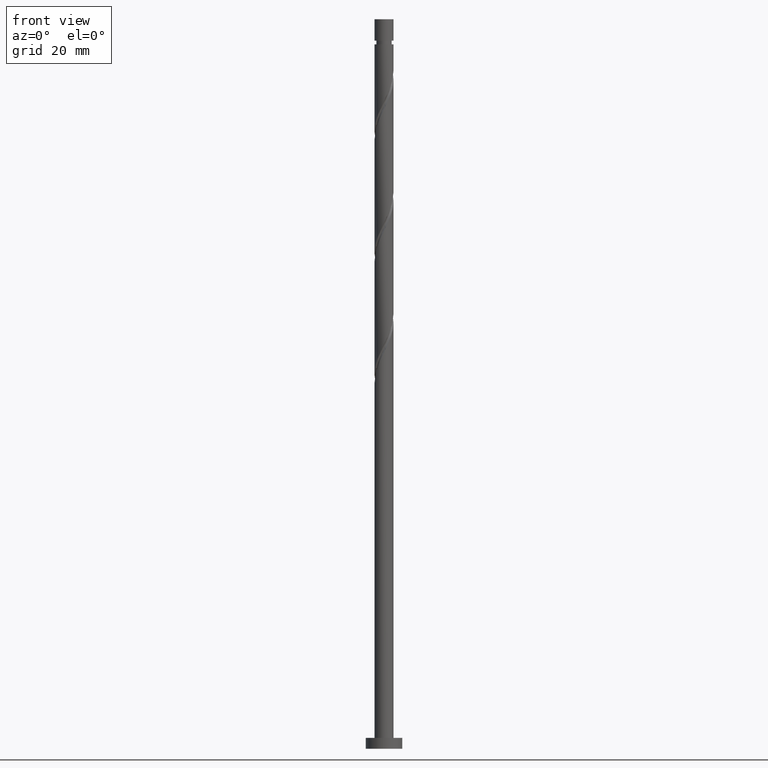
[diagram: clean part render]
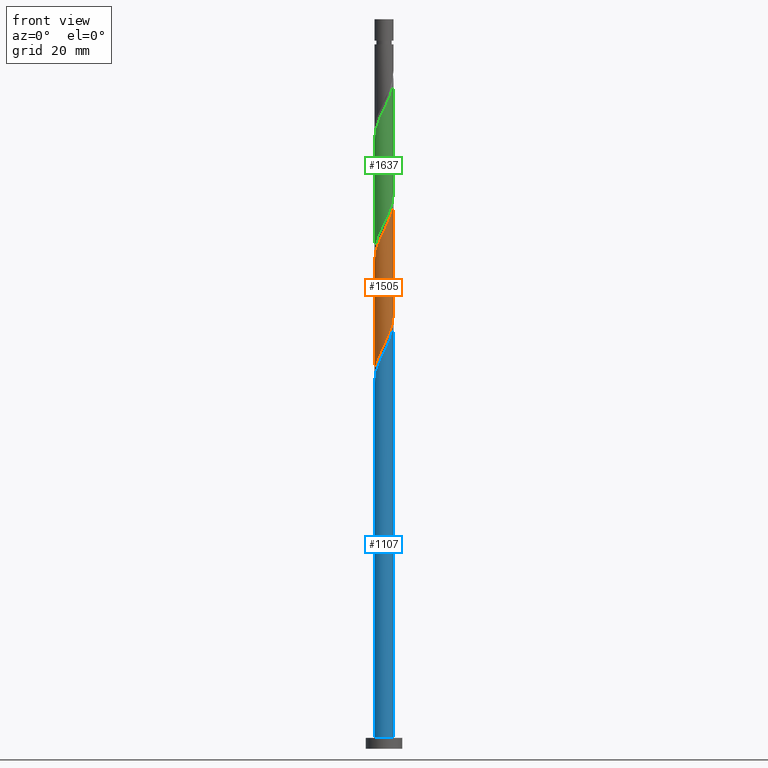
[diagram: same view with three faces highlighted in distinct colors, each labeled with its STEP entity id]
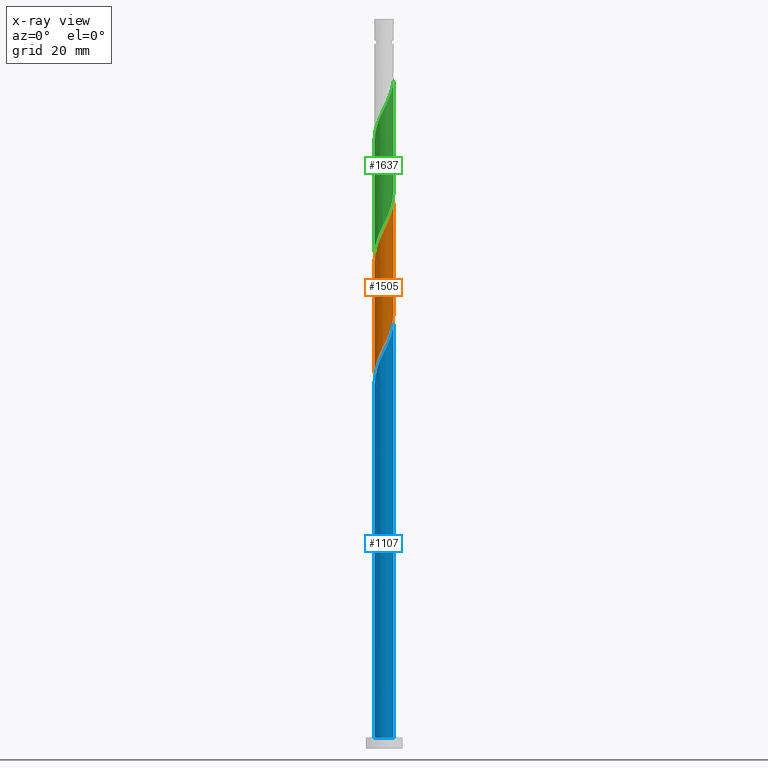
[diagram: x-ray of the same camera — body ghosted, the three highlighted faces saturated]
A machine part, front view with three faces highlighted in distinct colors.
The next image is the same camera in x-ray (body ghosted, the three faces saturated) — at least one of them is partly hidden behind the body in this view.
Their STEP definitions:

[orange] entity #1505 — the highlighted cylindrical surface (edge-blend (fillet) strip) has radius 2.6 mm, axis along (-0, -0, -1).
#12 = CARTESIAN_POINT ( 'NONE',  ( -0.8528440311481289005, -2.479883857795150970, 109.0557578972764219 ) ) ;
#59 = CARTESIAN_POINT ( 'NONE',  ( -2.600000000000000089, 0.000000000000000000, 200.0000000000000000 ) ) ;
#62 = EDGE_LOOP ( 'NONE', ( #938, #1053, #1549, #1127 ) ) ;
#133 = CARTESIAN_POINT ( 'NONE',  ( 2.574064434859625550, -0.5013573324573725731, 149.3335356750541507 ) ) ;
#135 = CARTESIAN_POINT ( 'NONE',  ( 2.174651586678561177, -1.465625247522153396, 116.0002023417208790 ) ) ;
#158 = VERTEX_POINT ( 'NONE', #1333 ) ;
#224 = EDGE_CURVE ( 'NONE', #158, #1468, #657, .T. ) ;
#265 = CARTESIAN_POINT ( 'NONE',  ( 2.600000000000003197, -0.07992907430996767926, 150.1901386651493056 ) ) ;
#267 = CARTESIAN_POINT ( 'NONE',  ( -2.356594490121320717, -1.150490894682694609, 104.8890912306097505 ) ) ;
#271 = CARTESIAN_POINT ( 'NONE',  ( -2.479883857795156743, -0.8528440311481284564, 135.4446467861652650 ) ) ;
#275 = CARTESIAN_POINT ( 'NONE',  ( -2.600000000000000533, 3.454324206476229849E-15, 102.4804356635976177 ) ) ;
#291 = CARTESIAN_POINT ( 'NONE',  ( 2.600000000000003642, 6.504896232974682792E-16, 150.3533023531774404 ) ) ;
#293 = CARTESIAN_POINT ( 'NONE',  ( 1.721220403711493541, -1.978526525337782838, 114.6113134528319932 ) ) ;
#302 = CARTESIAN_POINT ( 'NONE',  ( -0.1819429034427596792, -2.616116142204848671, 110.4446467861653076 ) ) ;
#328 = DIRECTION ( 'NONE',  ( -0.000000000000000000, -0.000000000000000000, -1.000000000000000000 ) ) ;
#336 =( BOUNDED_CURVE ( )  B_SPLINE_CURVE ( 2, ( #1198, #1720, #523, #271, #840, #559, #533, #1630, #821, #1081, #1621, #1219, #1097, #983, #1499, #1596, #397, #1470, #1735, #813, #659, #1494, #1473, #133, #1617, #265, #291 ),
 .UNSPECIFIED., .F., .T. ) 
 B_SPLINE_CURVE_WITH_KNOTS ( ( 3, 2, 2, 2, 2, 2, 2, 2, 2, 2, 2, 2, 2, 3 ),
 ( 0.3045317669814464612, 0.3125000000000000000, 0.3229166666666666297, 0.3333333333333333703, 0.3437500000000000000, 0.3541666666666666297, 0.3645833333333333703, 0.3750000000000000000, 0.3854166666666666297, 0.3958333333333333703, 0.4062500000000000000, 0.4166666666666666297, 0.4270833333333333703, 0.4295317669814458506 ),
 .UNSPECIFIED. ) 
 CURVE ( )  GEOMETRIC_REPRESENTATION_ITEM ( )  RATIONAL_B_SPLINE_CURVE ( ( 0.9062941362546521606, 0.9031415850403566870, 0.9090909090909320422, 0.9013135103398504100, 0.9090909090909320422, 0.9013135103398504100, 0.9090909090909320422, 0.9013135103398504100, 0.9090909090909320422, 0.9013135103398504100, 0.9090909090909320422, 0.9013135103398504100, 0.9090909090909320422, 0.9013135103398504100, 0.9090909090909320422, 0.9013135103398504100, 0.9090909090909320422, 0.9013135103398504100, 0.9090909090909320422, 0.9013135103398504100, 0.9090909090909320422, 0.9013135103398504100, 0.9090909090909320422, 0.9013135103398504100, 0.9090909090909320422, 0.9072628343904260984, 0.9062941362546526047 ) ) 
 REPRESENTATION_ITEM ( '' )  );
#390 = VECTOR ( 'NONE', #1547, 1000.000000000000000 ) ;
#397 = CARTESIAN_POINT ( 'NONE',  ( 1.159234639335140704, -2.327267722236860514, 144.4724245639430933 ) ) ;
#420 = EDGE_CURVE ( 'NONE', #1315, #158, #1662, .T. ) ;
#422 = CARTESIAN_POINT ( 'NONE',  ( 1.947935995195027248, -1.722075886429968561, 115.3057578972764361 ) ) ;
#454 = CARTESIAN_POINT ( 'NONE',  ( -2.600000000000000533, 3.454324206476229849E-15, 102.4804356635976177 ) ) ;
#485 = EDGE_CURVE ( 'NONE', #800, #1468, #1526, .T. ) ;
#523 = CARTESIAN_POINT ( 'NONE',  ( -2.548000000000004039, -0.5173934672954438874, 134.7502023417209216 ) ) ;
#533 = CARTESIAN_POINT ( 'NONE',  ( -1.947935995195030801, -1.722075886429968783, 137.5279801194986646 ) ) ;
#547 = CARTESIAN_POINT ( 'NONE',  ( 2.600000000000000533, 3.087956487607539127E-15, 119.1471023302642891 ) ) ;
#559 = CARTESIAN_POINT ( 'NONE',  ( -2.174651586678564730, -1.465625247522152952, 136.8335356750542076 ) ) ;
#568 = DIRECTION ( 'NONE',  ( -1.000000000000000000, 0.000000000000000000, 0.000000000000000000 ) ) ;
#572 = CARTESIAN_POINT ( 'NONE',  ( 0.1597072145073043792, -2.595090288532234890, 111.1390912306097789 ) ) ;
#657 =( BOUNDED_CURVE ( )  B_SPLINE_CURVE ( 2, ( #547, #837, #1216, #1488, #1102, #135, #422, #293, #979, #846, #707, #1636, #572, #302, #1608, #12, #970, #1094, #960, #1371, #987, #267, #1340, #1479, #1619, #1246, #275 ),
 .UNSPECIFIED., .F., .T. ) 
 B_SPLINE_CURVE_WITH_KNOTS ( ( 3, 2, 2, 2, 2, 2, 2, 2, 2, 2, 2, 2, 2, 3 ),
 ( 0.8045317669814462391, 0.8125000000000000000, 0.8229166666666666297, 0.8333333333333333703, 0.8437500000000000000, 0.8541666666666666297, 0.8645833333333333703, 0.8750000000000000000, 0.8854166666666666297, 0.8958333333333333703, 0.9062500000000000000, 0.9166666666666666297, 0.9270833333333333703, 0.9295317669814463502 ),
 .UNSPECIFIED. ) 
 CURVE ( )  GEOMETRIC_REPRESENTATION_ITEM ( )  RATIONAL_B_SPLINE_CURVE ( ( 0.9062941362546470536, 0.9031415850403513579, 0.9090909090909268242, 0.9013135103398453030, 0.9090909090909268242, 0.9013135103398453030, 0.9090909090909268242, 0.9013135103398453030, 0.9090909090909268242, 0.9013135103398453030, 0.9090909090909268242, 0.9013135103398453030, 0.9090909090909268242, 0.9013135103398453030, 0.9090909090909268242, 0.9013135103398453030, 0.9090909090909268242, 0.9013135103398453030, 0.9090909090909268242, 0.9013135103398453030, 0.9090909090909268242, 0.9013135103398453030, 0.9090909090909268242, 0.9013135103398453030, 0.9090909090909268242, 0.9072628343904205472, 0.9062941362546470536 ) ) 
 REPRESENTATION_ITEM ( '' )  );
#659 = CARTESIAN_POINT ( 'NONE',  ( 2.167560507729553887, -1.435855649197098183, 147.2502023417208363 ) ) ;
#707 = CARTESIAN_POINT ( 'NONE',  ( 0.8259241135700319258, -2.465329462490472245, 112.5279801194986504 ) ) ;
#715 = CARTESIAN_POINT ( 'NONE',  ( 2.600000000000000089, 3.184081677783118191E-16, 200.0000000000000000 ) ) ;
#717 = DIRECTION ( 'NONE',  ( -0.000000000000000000, -0.000000000000000000, -1.000000000000000000 ) ) ;
#729 = CYLINDRICAL_SURFACE ( 'NONE', #1084, 2.600000000000000089 ) ;
#800 = VERTEX_POINT ( 'NONE', #1139 ) ;
#813 = CARTESIAN_POINT ( 'NONE',  ( 1.978526525337784170, -1.721220403711497093, 146.5557578972763793 ) ) ;
#821 = CARTESIAN_POINT ( 'NONE',  ( -1.435855649197097073, -2.167560507729553887, 138.9168690083875788 ) ) ;
#837 = CARTESIAN_POINT ( 'NONE',  ( 2.600000000000000977, -0.2613098319673945458, 118.6136759610750033 ) ) ;
#840 = CARTESIAN_POINT ( 'NONE',  ( -2.327267722236859626, -1.159234639335141148, 136.1390912306098073 ) ) ;
#846 = CARTESIAN_POINT ( 'NONE',  ( 1.150490894682694609, -2.356594490121320717, 113.2224245639430791 ) ) ;
#938 = ORIENTED_EDGE ( 'NONE', *, *, #420, .F. ) ;
#960 = CARTESIAN_POINT ( 'NONE',  ( -1.722075886429968339, -1.947935995195027248, 106.9724245639430649 ) ) ;
#970 = CARTESIAN_POINT ( 'NONE',  ( -1.159234639335141148, -2.327267722236857406, 108.3613134528319790 ) ) ;
#979 = CARTESIAN_POINT ( 'NONE',  ( 1.435855649197093520, -2.167560507729552111, 113.9168690083875646 ) ) ;
#982 = CARTESIAN_POINT ( 'NONE',  ( 0.000000000000000000, 0.000000000000000000, 200.0000000000000000 ) ) ;
#983 = CARTESIAN_POINT ( 'NONE',  ( 0.1819429034427578473, -2.616116142204851336, 142.3890912306097505 ) ) ;
#987 = CARTESIAN_POINT ( 'NONE',  ( -2.167560507729551667, -1.435855649197094630, 105.5835356750541791 ) ) ;
#1053 = ORIENTED_EDGE ( 'NONE', *, *, #1256, .F. ) ;
#1081 = CARTESIAN_POINT ( 'NONE',  ( -1.150490894682697718, -2.356594490121323382, 139.6113134528319790 ) ) ;
#1084 = AXIS2_PLACEMENT_3D ( 'NONE', #982, #717, #568 ) ;
#1094 = CARTESIAN_POINT ( 'NONE',  ( -1.465625247522152286, -2.174651586678561177, 107.6668690083875362 ) ) ;
#1097 = CARTESIAN_POINT ( 'NONE',  ( -0.1597072145073067662, -2.595090288532238887, 141.6946467861653502 ) ) ;
#1102 = CARTESIAN_POINT ( 'NONE',  ( 2.327267722236856518, -1.159234639335142258, 116.6946467861653360 ) ) ;
#1127 = ORIENTED_EDGE ( 'NONE', *, *, #224, .F. ) ;
#1139 = CARTESIAN_POINT ( 'NONE',  ( -2.600000000000003642, -2.302882804317473550E-15, 133.6866356865107832 ) ) ;
#1158 = CARTESIAN_POINT ( 'NONE',  ( 2.600000000000003642, 6.504896232974681806E-16, 150.3533023531774404 ) ) ;
#1198 = CARTESIAN_POINT ( 'NONE',  ( -2.600000000000004086, -2.302882804317473155E-15, 133.6866356865107832 ) ) ;
#1216 = CARTESIAN_POINT ( 'NONE',  ( 2.547999999999999599, -0.5173934672954442204, 118.0835356750542218 ) ) ;
#1219 = CARTESIAN_POINT ( 'NONE',  ( -0.5013573324573711298, -2.574064434859625994, 141.0002023417208648 ) ) ;
#1246 = CARTESIAN_POINT ( 'NONE',  ( -2.600000000000000089, -0.07992907430994845852, 102.6435993516257668 ) ) ;
#1256 = EDGE_CURVE ( 'NONE', #800, #1315, #336, .T. ) ;
#1315 = VERTEX_POINT ( 'NONE', #1158 ) ;
#1333 = CARTESIAN_POINT ( 'NONE',  ( 2.600000000000000533, 3.087956487607539127E-15, 119.1471023302642891 ) ) ;
#1340 = CARTESIAN_POINT ( 'NONE',  ( -2.465329462490471801, -0.8259241135700320369, 104.1946467861653218 ) ) ;
#1371 = CARTESIAN_POINT ( 'NONE',  ( -1.978526525337782838, -1.721220403711493763, 106.2779801194986362 ) ) ;
#1389 = FACE_OUTER_BOUND ( 'NONE', #62, .T. ) ;
#1468 = VERTEX_POINT ( 'NONE', #454 ) ;
#1470 = CARTESIAN_POINT ( 'NONE',  ( 1.465625247522152730, -2.174651586678565174, 145.1668690083875788 ) ) ;
#1473 = CARTESIAN_POINT ( 'NONE',  ( 2.465329462490474022, -0.8259241135700351455, 148.6390912306098073 ) ) ;
#1479 = CARTESIAN_POINT ( 'NONE',  ( -2.574064434859621997, -0.5013573324573691314, 103.5002023417208648 ) ) ;
#1488 = CARTESIAN_POINT ( 'NONE',  ( 2.479883857795150082, -0.8528440311481304548, 117.3890912306097647 ) ) ;
#1494 = CARTESIAN_POINT ( 'NONE',  ( 2.356594490121322938, -1.150490894682697718, 147.9446467861653502 ) ) ;
#1499 = CARTESIAN_POINT ( 'NONE',  ( 0.5173934672954437763, -2.548000000000004039, 143.0835356750542360 ) ) ;
#1505 = ADVANCED_FACE ( 'NONE', ( #1389 ), #729, .T. ) ;
#1526 = LINE ( 'NONE', #59, #1651 ) ;
#1547 = DIRECTION ( 'NONE',  ( -0.000000000000000000, -0.000000000000000000, -1.000000000000000000 ) ) ;
#1549 = ORIENTED_EDGE ( 'NONE', *, *, #485, .T. ) ;
#1596 = CARTESIAN_POINT ( 'NONE',  ( 0.8528440311481283453, -2.479883857795156743, 143.7779801194986931 ) ) ;
#1608 = CARTESIAN_POINT ( 'NONE',  ( -0.5173934672954439984, -2.547999999999999599, 109.7502023417208790 ) ) ;
#1617 = CARTESIAN_POINT ( 'NONE',  ( 2.595090288532238887, -0.1597072145073080984, 150.0279801194986646 ) ) ;
#1619 = CARTESIAN_POINT ( 'NONE',  ( -2.595090288532234890, -0.1597072145073052674, 102.8057578972764645 ) ) ;
#1621 = CARTESIAN_POINT ( 'NONE',  ( -0.8259241135700349234, -2.465329462490474022, 140.3057578972764361 ) ) ;
#1630 = CARTESIAN_POINT ( 'NONE',  ( -1.721220403711497093, -1.978526525337784170, 138.2224245639430933 ) ) ;
#1636 = CARTESIAN_POINT ( 'NONE',  ( 0.5013573324573682433, -2.574064434859622441, 111.8335356750541791 ) ) ;
#1651 = VECTOR ( 'NONE', #328, 1000.000000000000000 ) ;
#1662 = LINE ( 'NONE', #715, #390 ) ;
#1720 = CARTESIAN_POINT ( 'NONE',  ( -2.600000000000002753, -0.2613098319674007075, 134.2200620557000832 ) ) ;
#1735 = CARTESIAN_POINT ( 'NONE',  ( 1.722075886429969005, -1.947935995195031467, 145.8613134528320074 ) ) ;

[blue] entity #1107 — the highlighted cylindrical surface (edge-blend (fillet) strip) has radius 2.6 mm, axis along (-0, -0, -1).
#35 = AXIS2_PLACEMENT_3D ( 'NONE', #1415, #1252, #311 ) ;
#51 = ORIENTED_EDGE ( 'NONE', *, *, #470, .T. ) ;
#57 = CARTESIAN_POINT ( 'NONE',  ( -2.600000000000003642, -2.302882804317473550E-15, 100.3533023531774973 ) ) ;
#97 = CARTESIAN_POINT ( 'NONE',  ( 1.722075886429969005, -1.947935995195031467, 112.5279801194986362 ) ) ;
#100 = VECTOR ( 'NONE', #871, 1000.000000000000000 ) ;
#172 = CARTESIAN_POINT ( 'NONE',  ( -2.174651586678564730, -1.465625247522152952, 103.5002023417209074 ) ) ;
#178 = CARTESIAN_POINT ( 'NONE',  ( 2.600000000000000089, 3.184081677783118191E-16, 200.0000000000000000 ) ) ;
#204 = ORIENTED_EDGE ( 'NONE', *, *, #1349, .T. ) ;
#212 = CARTESIAN_POINT ( 'NONE',  ( 2.574064434859625550, -0.5013573324573725731, 116.0002023417208932 ) ) ;
#223 = CARTESIAN_POINT ( 'NONE',  ( 2.595090288532238887, -0.1597072145073080984, 116.6946467861652934 ) ) ;
#311 = DIRECTION ( 'NONE',  ( 1.000000000000000000, 0.000000000000000000, 0.000000000000000000 ) ) ;
#347 = LINE ( 'NONE', #1204, #365 ) ;
#348 = CARTESIAN_POINT ( 'NONE',  ( -2.327267722236859626, -1.159234639335141148, 102.8057578972764361 ) ) ;
#350 = EDGE_LOOP ( 'NONE', ( #443, #1146, #204, #51 ) ) ;
#356 = CARTESIAN_POINT ( 'NONE',  ( -0.8259241135700349234, -2.465329462490474022, 106.9724245639431075 ) ) ;
#365 = VECTOR ( 'NONE', #682, 1000.000000000000000 ) ;
#366 = CARTESIAN_POINT ( 'NONE',  ( 2.600000000000003642, -0.07992907430994773688, 116.8568053318159770 ) ) ;
#373 = CARTESIAN_POINT ( 'NONE',  ( -0.1597072145073067662, -2.595090288532238887, 108.3613134528320074 ) ) ;
#432 = VERTEX_POINT ( 'NONE', #461 ) ;
#443 = ORIENTED_EDGE ( 'NONE', *, *, #763, .F. ) ;
#461 = CARTESIAN_POINT ( 'NONE',  ( -2.600000000000000089, 0.000000000000000000, 3.000000000000000000 ) ) ;
#470 = EDGE_CURVE ( 'NONE', #432, #698, #857, .T. ) ;
#477 = AXIS2_PLACEMENT_3D ( 'NONE', #645, #488, #1324 ) ;
#488 = DIRECTION ( 'NONE',  ( -0.000000000000000000, -0.000000000000000000, -1.000000000000000000 ) ) ;
#492 = CARTESIAN_POINT ( 'NONE',  ( -1.947935995195030801, -1.722075886429968783, 104.1946467861653360 ) ) ;
#512 = CARTESIAN_POINT ( 'NONE',  ( 1.465625247522152730, -2.174651586678565174, 111.8335356750541791 ) ) ;
#618 = CARTESIAN_POINT ( 'NONE',  ( 2.600000000000003642, 6.504896232974681806E-16, 117.0199690198441260 ) ) ;
#627 =( BOUNDED_CURVE ( )  B_SPLINE_CURVE ( 2, ( #1027, #1379, #1653, #1387, #348, #172, #492, #1575, #907, #1708, #356, #1038, #373, #926, #782, #1425, #1435, #512, #97, #1553, #1692, #1564, #1701, #212, #223, #366, #1448 ),
 .UNSPECIFIED., .F., .T. ) 
 B_SPLINE_CURVE_WITH_KNOTS ( ( 3, 2, 2, 2, 2, 2, 2, 2, 2, 2, 2, 2, 2, 3 ),
 ( 0.05453176698144631546, 0.06250000000000000000, 0.07291666666666662966, 0.08333333333333337034, 0.09375000000000000000, 0.1041666666666666297, 0.1145833333333333703, 0.1250000000000000000, 0.1354166666666666297, 0.1458333333333333703, 0.1562500000000000000, 0.1666666666666666297, 0.1770833333333333703, 0.1795317669814464612 ),
 .UNSPECIFIED. ) 
 CURVE ( )  GEOMETRIC_REPRESENTATION_ITEM ( )  RATIONAL_B_SPLINE_CURVE ( ( 0.9062941362546521606, 0.9031415850403565759, 0.9090909090909320422, 0.9013135103398504100, 0.9090909090909320422, 0.9013135103398504100, 0.9090909090909320422, 0.9013135103398504100, 0.9090909090909320422, 0.9013135103398504100, 0.9090909090909320422, 0.9013135103398504100, 0.9090909090909320422, 0.9013135103398504100, 0.9090909090909320422, 0.9013135103398504100, 0.9090909090909320422, 0.9013135103398504100, 0.9090909090909320422, 0.9013135103398504100, 0.9090909090909320422, 0.9013135103398504100, 0.9090909090909320422, 0.9013135103398504100, 0.9090909090909320422, 0.9072628343904256543, 0.9062941362546521606 ) ) 
 REPRESENTATION_ITEM ( '' )  );
#645 = CARTESIAN_POINT ( 'NONE',  ( 0.000000000000000000, 0.000000000000000000, 200.0000000000000000 ) ) ;
#651 = EDGE_CURVE ( 'NONE', #1288, #1741, #627, .T. ) ;
#682 = DIRECTION ( 'NONE',  ( -0.000000000000000000, -0.000000000000000000, -1.000000000000000000 ) ) ;
#698 = VERTEX_POINT ( 'NONE', #1318 ) ;
#763 = EDGE_CURVE ( 'NONE', #1741, #698, #1402, .T. ) ;
#782 = CARTESIAN_POINT ( 'NONE',  ( 0.5173934672954437763, -2.548000000000004039, 109.7502023417208505 ) ) ;
#857 = CIRCLE ( 'NONE', #35, 2.600000000000000089 ) ;
#871 = DIRECTION ( 'NONE',  ( -0.000000000000000000, -0.000000000000000000, -1.000000000000000000 ) ) ;
#893 = FACE_OUTER_BOUND ( 'NONE', #350, .T. ) ;
#907 = CARTESIAN_POINT ( 'NONE',  ( -1.435855649197097073, -2.167560507729553887, 105.5835356750542076 ) ) ;
#926 = CARTESIAN_POINT ( 'NONE',  ( 0.1819429034427578473, -2.616116142204851336, 109.0557578972764219 ) ) ;
#1027 = CARTESIAN_POINT ( 'NONE',  ( -2.600000000000004086, -2.302882804317473155E-15, 100.3533023531774973 ) ) ;
#1038 = CARTESIAN_POINT ( 'NONE',  ( -0.5013573324573711298, -2.574064434859625994, 107.6668690083875219 ) ) ;
#1069 = CYLINDRICAL_SURFACE ( 'NONE', #477, 2.600000000000000089 ) ;
#1107 = ADVANCED_FACE ( 'NONE', ( #893 ), #1069, .T. ) ;
#1146 = ORIENTED_EDGE ( 'NONE', *, *, #651, .F. ) ;
#1204 = CARTESIAN_POINT ( 'NONE',  ( -2.600000000000000089, 0.000000000000000000, 200.0000000000000000 ) ) ;
#1252 = DIRECTION ( 'NONE',  ( 0.000000000000000000, 0.000000000000000000, 1.000000000000000000 ) ) ;
#1288 = VERTEX_POINT ( 'NONE', #57 ) ;
#1318 = CARTESIAN_POINT ( 'NONE',  ( 2.600000000000000089, 3.184081677783118191E-16, 3.000000000000000000 ) ) ;
#1324 = DIRECTION ( 'NONE',  ( -1.000000000000000000, 0.000000000000000000, 0.000000000000000000 ) ) ;
#1349 = EDGE_CURVE ( 'NONE', #1288, #432, #347, .T. ) ;
#1379 = CARTESIAN_POINT ( 'NONE',  ( -2.600000000000003197, -0.2613098319673958780, 100.8867287223667546 ) ) ;
#1387 = CARTESIAN_POINT ( 'NONE',  ( -2.479883857795156743, -0.8528440311481284564, 102.1113134528320074 ) ) ;
#1402 = LINE ( 'NONE', #178, #100 ) ;
#1415 = CARTESIAN_POINT ( 'NONE',  ( 0.000000000000000000, 0.000000000000000000, 3.000000000000000000 ) ) ;
#1425 = CARTESIAN_POINT ( 'NONE',  ( 0.8528440311481283453, -2.479883857795156743, 110.4446467861653218 ) ) ;
#1435 = CARTESIAN_POINT ( 'NONE',  ( 1.159234639335140704, -2.327267722236860514, 111.1390912306097789 ) ) ;
#1448 = CARTESIAN_POINT ( 'NONE',  ( 2.600000000000004086, 6.504896232974682792E-16, 117.0199690198441260 ) ) ;
#1553 = CARTESIAN_POINT ( 'NONE',  ( 1.978526525337784170, -1.721220403711497093, 113.2224245639430933 ) ) ;
#1564 = CARTESIAN_POINT ( 'NONE',  ( 2.356594490121322938, -1.150490894682697718, 114.6113134528320074 ) ) ;
#1575 = CARTESIAN_POINT ( 'NONE',  ( -1.721220403711497093, -1.978526525337784170, 104.8890912306097647 ) ) ;
#1653 = CARTESIAN_POINT ( 'NONE',  ( -2.548000000000004039, -0.5173934672954438874, 101.4168690083875362 ) ) ;
#1692 = CARTESIAN_POINT ( 'NONE',  ( 2.167560507729553887, -1.435855649197098183, 113.9168690083875646 ) ) ;
#1701 = CARTESIAN_POINT ( 'NONE',  ( 2.465329462490474022, -0.8259241135700351455, 115.3057578972764361 ) ) ;
#1708 = CARTESIAN_POINT ( 'NONE',  ( -1.150490894682697718, -2.356594490121323382, 106.2779801194986788 ) ) ;
#1741 = VERTEX_POINT ( 'NONE', #618 ) ;

[green] entity #1637 — the highlighted cylindrical surface (edge-blend (fillet) strip) has radius 2.6 mm, axis along (-0, -0, -1).
#6 = VECTOR ( 'NONE', #183, 1000.000000000000000 ) ;
#10 = EDGE_CURVE ( 'NONE', #1587, #1029, #48, .T. ) ;
#15 = CARTESIAN_POINT ( 'NONE',  ( -2.327267722236859626, -1.159234639335141148, 169.4724245639431217 ) ) ;
#30 = CARTESIAN_POINT ( 'NONE',  ( -1.978526525337782838, -1.721220403711493763, 139.6113134528319506 ) ) ;
#41 = CARTESIAN_POINT ( 'NONE',  ( 1.435855649197093520, -2.167560507729552111, 147.2502023417208932 ) ) ;
#48 =( BOUNDED_CURVE ( )  B_SPLINE_CURVE ( 2, ( #1255, #1407, #1153, #1418, #1040, #727, #754, #1398, #41, #1665, #1556, #358, #909, #462, #1011, #1674, #1539, #1529, #166, #30, #341, #483, #588, #1135, #738, #1272, #471 ),
 .UNSPECIFIED., .F., .T. ) 
 B_SPLINE_CURVE_WITH_KNOTS ( ( 3, 2, 2, 2, 2, 2, 2, 2, 2, 2, 2, 2, 2, 3 ),
 ( 0.5545317669814460171, 0.5625000000000000000, 0.5729166666666666297, 0.5833333333333333703, 0.5937500000000000000, 0.6041666666666666297, 0.6145833333333333703, 0.6250000000000000000, 0.6354166666666666297, 0.6458333333333333703, 0.6562500000000000000, 0.6666666666666666297, 0.6770833333333333703, 0.6795317669814461281 ),
 .UNSPECIFIED. ) 
 CURVE ( )  GEOMETRIC_REPRESENTATION_ITEM ( )  RATIONAL_B_SPLINE_CURVE ( ( 0.9062941362546473867, 0.9031415850403512469, 0.9090909090909268242, 0.9013135103398453030, 0.9090909090909268242, 0.9013135103398453030, 0.9090909090909268242, 0.9013135103398453030, 0.9090909090909268242, 0.9013135103398453030, 0.9090909090909268242, 0.9013135103398453030, 0.9090909090909268242, 0.9013135103398453030, 0.9090909090909268242, 0.9013135103398453030, 0.9090909090909268242, 0.9013135103398453030, 0.9090909090909268242, 0.9013135103398453030, 0.9090909090909268242, 0.9013135103398453030, 0.9090909090909268242, 0.9013135103398453030, 0.9090909090909268242, 0.9072628343904207693, 0.9062941362546473867 ) ) 
 REPRESENTATION_ITEM ( '' )  );
#84 = CARTESIAN_POINT ( 'NONE',  ( 0.1819429034427578473, -2.616116142204851336, 175.7224245639430933 ) ) ;
#106 = CARTESIAN_POINT ( 'NONE',  ( 2.167560507729553887, -1.435855649197098183, 180.5835356750542360 ) ) ;
#121 = CARTESIAN_POINT ( 'NONE',  ( 2.600000000000003197, -2.243067666542993301E-16, 183.6866356865108116 ) ) ;
#166 = CARTESIAN_POINT ( 'NONE',  ( -1.722075886429968339, -1.947935995195027248, 140.3057578972764645 ) ) ;
#175 = ORIENTED_EDGE ( 'NONE', *, *, #1527, .F. ) ;
#183 = DIRECTION ( 'NONE',  ( -0.000000000000000000, -0.000000000000000000, -1.000000000000000000 ) ) ;
#186 = CARTESIAN_POINT ( 'NONE',  ( -1.435855649197097073, -2.167560507729553887, 172.2502023417208932 ) ) ;
#194 = EDGE_LOOP ( 'NONE', ( #962, #175, #995, #848 ) ) ;
#210 = CARTESIAN_POINT ( 'NONE',  ( 2.465329462490474022, -0.8259241135700351455, 181.9724245639431217 ) ) ;
#255 = DIRECTION ( 'NONE',  ( -1.000000000000000000, 0.000000000000000000, 0.000000000000000000 ) ) ;
#330 = CARTESIAN_POINT ( 'NONE',  ( -1.947935995195030801, -1.722075886429968783, 170.8613134528319790 ) ) ;
#341 = CARTESIAN_POINT ( 'NONE',  ( -2.167560507729551667, -1.435855649197094630, 138.9168690083875788 ) ) ;
#342 = EDGE_CURVE ( 'NONE', #1197, #1029, #898, .T. ) ;
#358 = CARTESIAN_POINT ( 'NONE',  ( 0.5013573324573682433, -2.574064434859622441, 145.1668690083875219 ) ) ;
#380 = CARTESIAN_POINT ( 'NONE',  ( 2.600000000000000533, 3.087956487607539127E-15, 152.4804356635976603 ) ) ;
#389 = DIRECTION ( 'NONE',  ( -0.000000000000000000, -0.000000000000000000, -1.000000000000000000 ) ) ;
#444 = CARTESIAN_POINT ( 'NONE',  ( -2.548000000000004039, -0.5173934672954438874, 168.0835356750542076 ) ) ;
#462 = CARTESIAN_POINT ( 'NONE',  ( -0.1819429034427596792, -2.616116142204848671, 143.7779801194986931 ) ) ;
#463 = CARTESIAN_POINT ( 'NONE',  ( -2.174651586678564730, -1.465625247522152952, 170.1668690083875788 ) ) ;
#471 = CARTESIAN_POINT ( 'NONE',  ( -2.600000000000000533, -3.790784356457680496E-15, 135.8137689969309747 ) ) ;
#483 = CARTESIAN_POINT ( 'NONE',  ( -2.356594490121320717, -1.150490894682694609, 138.2224245639430933 ) ) ;
#520 = CARTESIAN_POINT ( 'NONE',  ( 2.595090288532238887, -0.1597072145073080984, 183.3613134528320359 ) ) ;
#526 = FACE_OUTER_BOUND ( 'NONE', #194, .T. ) ;
#588 = CARTESIAN_POINT ( 'NONE',  ( -2.465329462490471801, -0.8259241135700320369, 137.5279801194986646 ) ) ;
#658 = CARTESIAN_POINT ( 'NONE',  ( 1.465625247522152730, -2.174651586678565174, 178.5002023417208932 ) ) ;
#727 = CARTESIAN_POINT ( 'NONE',  ( 2.174651586678561177, -1.465625247522153396, 149.3335356750541507 ) ) ;
#738 = CARTESIAN_POINT ( 'NONE',  ( -2.595090288532234890, -0.1597072145073052674, 136.1390912306098073 ) ) ;
#754 = CARTESIAN_POINT ( 'NONE',  ( 1.947935995195027248, -1.722075886429968561, 148.6390912306097505 ) ) ;
#781 = CARTESIAN_POINT ( 'NONE',  ( -1.150490894682697718, -2.356594490121323382, 172.9446467861652650 ) ) ;
#848 = ORIENTED_EDGE ( 'NONE', *, *, #10, .F. ) ;
#849 = CARTESIAN_POINT ( 'NONE',  ( -2.600000000000002753, -0.2613098319673962111, 167.5533953890333976 ) ) ;
#884 = CARTESIAN_POINT ( 'NONE',  ( -1.721220403711497093, -1.978526525337784170, 171.5557578972764077 ) ) ;
#898 = LINE ( 'NONE', #1170, #6 ) ;
#909 = CARTESIAN_POINT ( 'NONE',  ( 0.1597072145073043792, -2.595090288532234890, 144.4724245639431217 ) ) ;
#917 = CARTESIAN_POINT ( 'NONE',  ( 1.722075886429969005, -1.947935995195031467, 179.1946467861654071 ) ) ;
#961 = CARTESIAN_POINT ( 'NONE',  ( -2.600000000000000533, -3.790784356457680496E-15, 135.8137689969309747 ) ) ;
#962 = ORIENTED_EDGE ( 'NONE', *, *, #1331, .F. ) ;
#995 = ORIENTED_EDGE ( 'NONE', *, *, #342, .T. ) ;
#1011 = CARTESIAN_POINT ( 'NONE',  ( -0.5173934672954439984, -2.547999999999999599, 143.0835356750542076 ) ) ;
#1026 = CARTESIAN_POINT ( 'NONE',  ( 2.600000000000000089, 3.184081677783118191E-16, 200.0000000000000000 ) ) ;
#1029 = VERTEX_POINT ( 'NONE', #961 ) ;
#1040 = CARTESIAN_POINT ( 'NONE',  ( 2.327267722236856518, -1.159234639335142258, 150.0279801194986646 ) ) ;
#1046 = CARTESIAN_POINT ( 'NONE',  ( -0.5013573324573711298, -2.574064434859625994, 174.3335356750542360 ) ) ;
#1058 = CARTESIAN_POINT ( 'NONE',  ( 1.159234639335140704, -2.327267722236860514, 177.8057578972764645 ) ) ;
#1065 = CARTESIAN_POINT ( 'NONE',  ( -2.600000000000003197, 2.175775636546703034E-15, 167.0199690198441544 ) ) ;
#1068 = CARTESIAN_POINT ( 'NONE',  ( 2.600000000000003197, -2.243067666542993301E-16, 183.6866356865108401 ) ) ;
#1077 = CYLINDRICAL_SURFACE ( 'NONE', #1464, 2.600000000000000089 ) ;
#1121 = CARTESIAN_POINT ( 'NONE',  ( -2.600000000000003197, 2.175775636546703034E-15, 167.0199690198441544 ) ) ;
#1135 = CARTESIAN_POINT ( 'NONE',  ( -2.574064434859621997, -0.5013573324573691314, 136.8335356750542076 ) ) ;
#1153 = CARTESIAN_POINT ( 'NONE',  ( 2.547999999999999599, -0.5173934672954442204, 151.4168690083875504 ) ) ;
#1170 = CARTESIAN_POINT ( 'NONE',  ( -2.600000000000000089, 0.000000000000000000, 200.0000000000000000 ) ) ;
#1184 = CARTESIAN_POINT ( 'NONE',  ( 0.5173934672954437763, -2.548000000000004039, 176.4168690083875504 ) ) ;
#1197 = VERTEX_POINT ( 'NONE', #1065 ) ;
#1200 = CARTESIAN_POINT ( 'NONE',  ( 2.574064434859625550, -0.5013573324573725731, 182.6668690083875219 ) ) ;
#1214 = VECTOR ( 'NONE', #1545, 1000.000000000000000 ) ;
#1255 = CARTESIAN_POINT ( 'NONE',  ( 2.600000000000000533, 3.087956487607539127E-15, 152.4804356635976603 ) ) ;
#1272 = CARTESIAN_POINT ( 'NONE',  ( -2.599999999999999645, -0.07992907430995570273, 135.9769326849591096 ) ) ;
#1292 =( BOUNDED_CURVE ( )  B_SPLINE_CURVE ( 2, ( #1121, #849, #444, #1519, #15, #463, #330, #884, #186, #781, #1306, #1046, #1730, #84, #1184, #1455, #1058, #658, #917, #1317, #106, #1424, #210, #1200, #520, #1722, #1068 ),
 .UNSPECIFIED., .F., .T. ) 
 B_SPLINE_CURVE_WITH_KNOTS ( ( 3, 2, 2, 2, 2, 2, 2, 2, 2, 2, 2, 2, 2, 3 ),
 ( 0.5545317669814462391, 0.5625000000000000000, 0.5729166666666667407, 0.5833333333333332593, 0.5937500000000000000, 0.6041666666666667407, 0.6145833333333332593, 0.6250000000000000000, 0.6354166666666667407, 0.6458333333333332593, 0.6562500000000000000, 0.6666666666666667407, 0.6770833333333332593, 0.6795317669814463502 ),
 .UNSPECIFIED. ) 
 CURVE ( )  GEOMETRIC_REPRESENTATION_ITEM ( )  RATIONAL_B_SPLINE_CURVE ( ( 0.9062941362546524937, 0.9031415850403566870, 0.9090909090909320422, 0.9013135103398504100, 0.9090909090909320422, 0.9013135103398504100, 0.9090909090909320422, 0.9013135103398504100, 0.9090909090909320422, 0.9013135103398504100, 0.9090909090909320422, 0.9013135103398504100, 0.9090909090909320422, 0.9013135103398504100, 0.9090909090909320422, 0.9013135103398504100, 0.9090909090909320422, 0.9013135103398504100, 0.9090909090909320422, 0.9013135103398504100, 0.9090909090909320422, 0.9013135103398504100, 0.9090909090909320422, 0.9013135103398504100, 0.9090909090909320422, 0.9072628343904257653, 0.9062941362546523827 ) ) 
 REPRESENTATION_ITEM ( '' )  );
#1306 = CARTESIAN_POINT ( 'NONE',  ( -0.8259241135700349234, -2.465329462490474022, 173.6390912306098073 ) ) ;
#1317 = CARTESIAN_POINT ( 'NONE',  ( 1.978526525337784170, -1.721220403711497093, 179.8890912306097221 ) ) ;
#1331 = EDGE_CURVE ( 'NONE', #1656, #1587, #1680, .T. ) ;
#1398 = CARTESIAN_POINT ( 'NONE',  ( 1.721220403711493541, -1.978526525337782838, 147.9446467861653502 ) ) ;
#1407 = CARTESIAN_POINT ( 'NONE',  ( 2.600000000000002309, -0.2613098319673873848, 151.9470092944083603 ) ) ;
#1418 = CARTESIAN_POINT ( 'NONE',  ( 2.479883857795150082, -0.8528440311481304548, 150.7224245639431217 ) ) ;
#1424 = CARTESIAN_POINT ( 'NONE',  ( 2.356594490121322938, -1.150490894682697718, 181.2779801194986646 ) ) ;
#1455 = CARTESIAN_POINT ( 'NONE',  ( 0.8528440311481283453, -2.479883857795156743, 177.1113134528319790 ) ) ;
#1464 = AXIS2_PLACEMENT_3D ( 'NONE', #1591, #389, #255 ) ;
#1519 = CARTESIAN_POINT ( 'NONE',  ( -2.479883857795156743, -0.8528440311481284564, 168.7779801194986646 ) ) ;
#1527 = EDGE_CURVE ( 'NONE', #1197, #1656, #1292, .T. ) ;
#1529 = CARTESIAN_POINT ( 'NONE',  ( -1.465625247522152286, -2.174651586678561177, 141.0002023417208648 ) ) ;
#1539 = CARTESIAN_POINT ( 'NONE',  ( -1.159234639335141148, -2.327267722236857406, 141.6946467861652934 ) ) ;
#1545 = DIRECTION ( 'NONE',  ( -0.000000000000000000, -0.000000000000000000, -1.000000000000000000 ) ) ;
#1556 = CARTESIAN_POINT ( 'NONE',  ( 0.8259241135700319258, -2.465329462490472245, 145.8613134528319790 ) ) ;
#1587 = VERTEX_POINT ( 'NONE', #380 ) ;
#1591 = CARTESIAN_POINT ( 'NONE',  ( 0.000000000000000000, 0.000000000000000000, 200.0000000000000000 ) ) ;
#1637 = ADVANCED_FACE ( 'NONE', ( #526 ), #1077, .T. ) ;
#1656 = VERTEX_POINT ( 'NONE', #121 ) ;
#1665 = CARTESIAN_POINT ( 'NONE',  ( 1.150490894682694609, -2.356594490121320717, 146.5557578972764645 ) ) ;
#1674 = CARTESIAN_POINT ( 'NONE',  ( -0.8528440311481289005, -2.479883857795150970, 142.3890912306097221 ) ) ;
#1680 = LINE ( 'NONE', #1026, #1214 ) ;
#1722 = CARTESIAN_POINT ( 'NONE',  ( 2.600000000000003642, -0.07992907430994861118, 183.5234719984826768 ) ) ;
#1730 = CARTESIAN_POINT ( 'NONE',  ( -0.1597072145073067662, -2.595090288532238887, 175.0279801194986646 ) ) ;